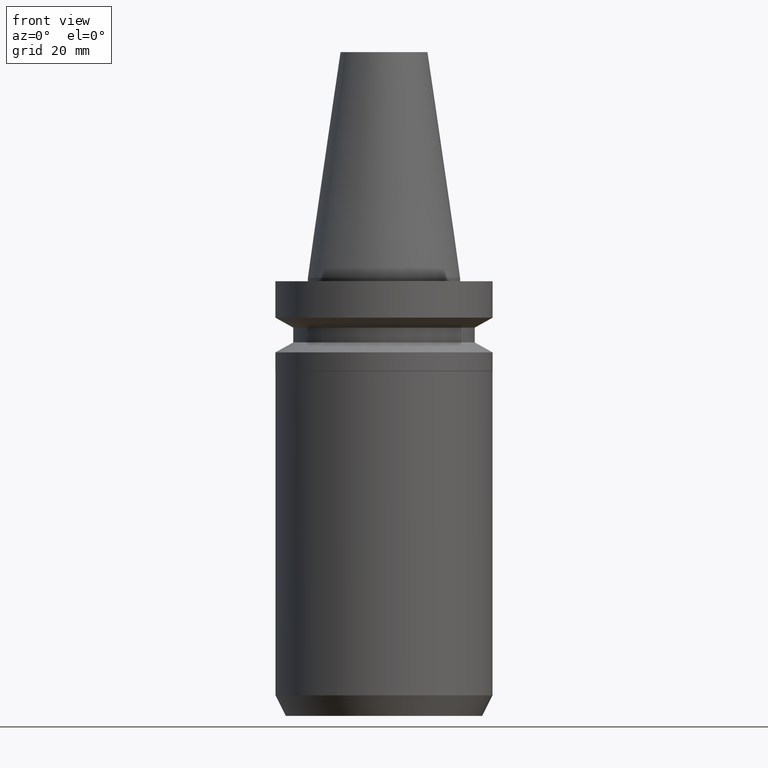
[diagram: clean part render]
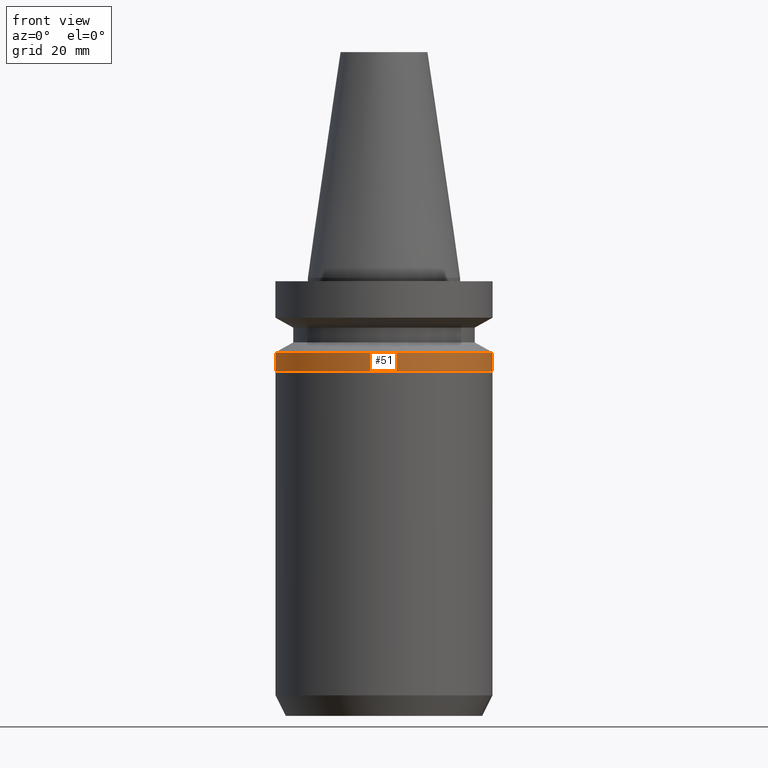
[diagram: same view with one face highlighted and labeled with its STEP entity id]
A machine part, front view. The second image highlights one B-rep face of the part: STEP entity #51.
In plain terms, the highlighted cylindrical surface (bore or boss wall) has radius 31.5 mm, axis along (0, -0, -1).
Its self-contained STEP definition (entity closure, byte-faithful):
#51=ADVANCED_FACE('Unnamed[1]',(#133,#134),#135,.T.);
#56=EDGE_CURVE('Unnamed[1]',#142,#142,#143,.T.);
#68=EDGE_CURVE('Unnamed[1]',#161,#161,#162,.T.);
#133=FACE_BOUND('',#242,.T.);
#134=FACE_BOUND('',#243,.T.);
#135=CYLINDRICAL_SURFACE('',#244,31.5000000000005);
#142=VERTEX_POINT('',#253);
#143=CIRCLE('',#254,31.5000000000003);
#161=VERTEX_POINT('',#277);
#162=CIRCLE('',#278,31.5000000000007);
#242=EDGE_LOOP('',(#368));
#243=EDGE_LOOP('',(#369));
#244=AXIS2_PLACEMENT_3D('',#370,#371,#372);
#253=CARTESIAN_POINT('',(1.65327317884893E-015,31.5000000000004,-27.0));
#254=AXIS2_PLACEMENT_3D('',#379,#380,#381);
#277=CARTESIAN_POINT('',(1.32473071268174E-015,31.5000000000007,-21.6344943473346));
#278=AXIS2_PLACEMENT_3D('',#400,#401,#402);
#368=ORIENTED_EDGE('',*,*,#56,.F.);
#369=ORIENTED_EDGE('',*,*,#68,.T.);
#370=CARTESIAN_POINT('',(1.48900194576534E-015,4.84645246943302E-014,-24.3172471736673));
#371=DIRECTION('',(6.12323399573677E-017,-3.16409739642793E-016,-1.0));
#372=DIRECTION('',(1.45473560128601E-032,1.0,-3.16409739642793E-016));
#379=CARTESIAN_POINT('',(1.65327317884893E-015,4.76156755710243E-014,-27.0));
#380=DIRECTION('',(6.12323399573676E-017,-3.16409739642795E-016,-1.0));
#381=DIRECTION('',(1.45473560128602E-032,1.0,-3.16409739642795E-016));
#400=CARTESIAN_POINT('',(1.32473071268174E-015,4.93133738176361E-014,-21.6344943473346));
#401=DIRECTION('',(6.12323399573677E-017,-3.16409739642792E-016,-1.0));
#402=DIRECTION('',(1.45473560128572E-032,1.0,-3.16409739642792E-016));